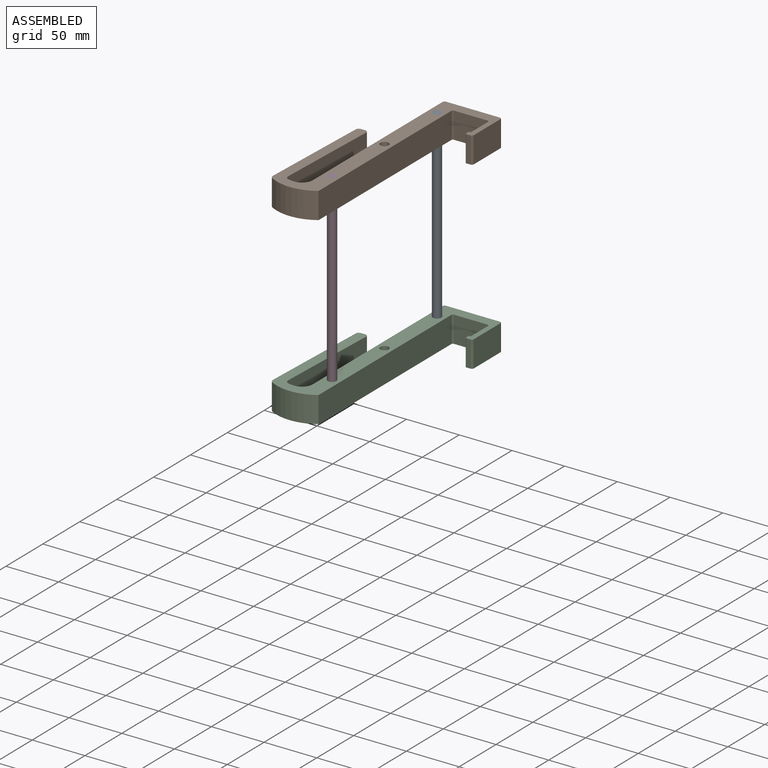
[diagram: assembled view]
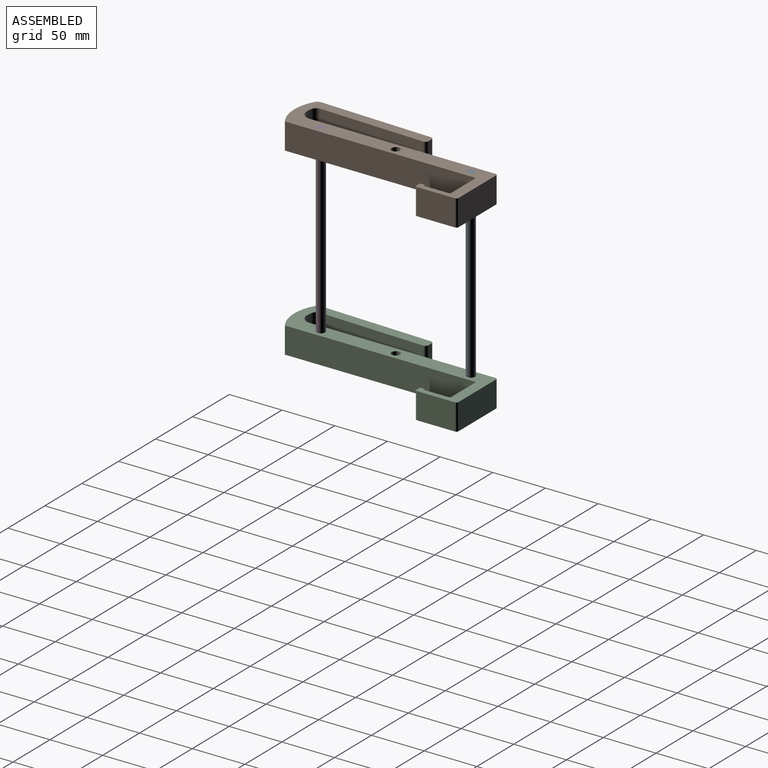
[diagram: assembled view, second angle]
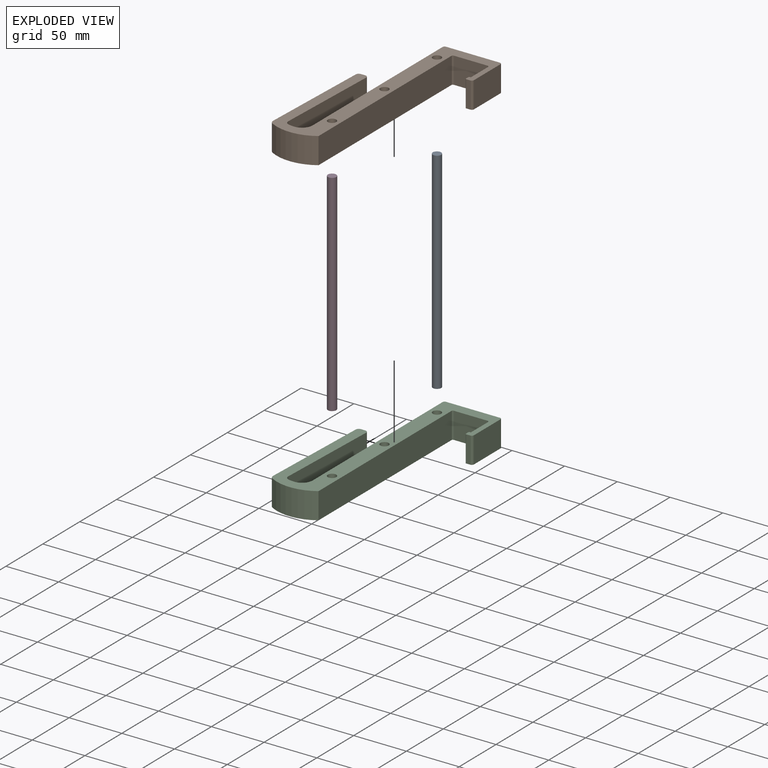
[diagram: exploded view]
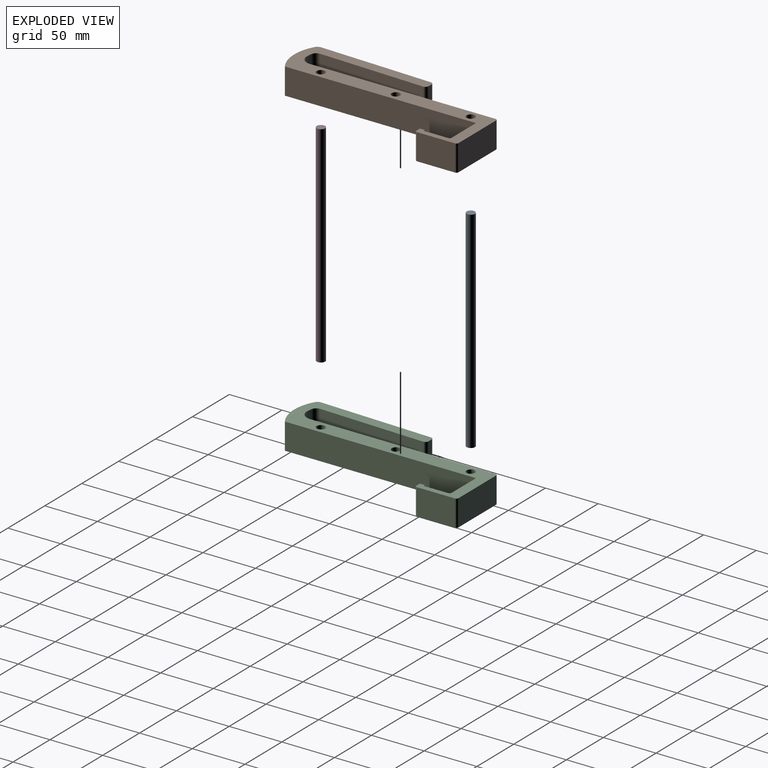
[diagram: exploded view, second angle]
ASSEMBLY  parts=4 mates=3
PART A: 3 faces, bbox 8x8x200 mm
  f0: cylinder r=4mm len=200mm, axis (0,0,-1), area 5026.5mm2, adj f1,f2
  f1: plane 8x8mm, normal (0,0,1), area 50.3mm2, adj f0
  f2: plane 8x8mm, normal (0,0,-1), area 50.3mm2, adj f0
PART B: 31 faces, bbox 85.1x198.2x25 mm
  f0: cylinder r=2mm len=25mm, axis (0,0,-1), area 78.5mm2, adj f1,f24,f25,f26
  f1: plane 25x23mm, normal (-1,0,0), area 575mm2, adj f0,f2,f25,f26
  f2: plane 25x0.84mm, normal (0,1,0), area 21.1mm2, adj f1,f3,f25,f26
  f3: cylinder r=1mm len=25mm, axis (0,0,-1), area 39.3mm2, adj f2,f4,f25,f26
  f4: plane 25x3mm, normal (-1,0,0), area 75mm2, adj f3,f5,f25,f26
  f5: cylinder r=1mm len=25mm, axis (0,0,-1), area 39.3mm2, adj f4,f6,f25,f26
  f6: plane 25x3.84mm, normal (0,-1,0), area 96.1mm2, adj f5,f25,f26,f27
  f7: plane 36x25mm, normal (1,0,0), area 900mm2, adj f25,f26,f27,f28
  f8: plane 51x25mm, normal (0,1,0), area 1275mm2, adj f25,f26,f28,f29
  f9: plane 175.99x25mm, normal (-1,0,0), area 4399.8mm2, adj f10,f25,f26,f29
  f10: cylinder r=10mm len=25mm, axis (0,0,-1), area 392.7mm2, adj f9,f11,f25,f26
  f11: cylinder r=28.74mm len=25mm, axis (0,0,-1), area 148.4mm2, adj f10,f12,f25,f26
  f12: cylinder r=5mm len=25mm, axis (0,0,-1), area 174.9mm2, adj f11,f13,f25,f26
  f13: plane 100.13x25mm, normal (1,-0.03,0), area 2504.8mm2, adj f12,f14,f25,f26
  f14: cylinder r=3mm len=25mm, axis (0,0,-1), area 120.4mm2, adj f13,f15,f25,f26
  f15: plane 25x4mm, normal (0,1,0), area 99.9mm2, adj f14,f16,f25,f26
  f16: cylinder r=3mm len=25mm, axis (0,0,-1), area 115.2mm2, adj f15,f17,f25,f26
  f17: plane 106.52x25mm, normal (-1,0.03,0), area 2664.7mm2, adj f16,f25,f26,f30
  f18: cylinder r=40.95mm len=42.52mm, axis (0,0,-1), area 1118.5mm2, adj f19,f25,f26,f30
  f19: plane 180.68x25mm, normal (1,0,0), area 4517.1mm2, adj f18,f20,f25,f26
  f20: cylinder r=2mm len=25mm, axis (0,0,-1), area 44.2mm2, adj f19,f24,f25,f26
  f21: cylinder r=4mm len=25mm, axis (0,0,-1), area 628.3mm2, adj f25,f26
  f22: cylinder r=4mm len=25mm, axis (0,0,-1), area 628.3mm2, adj f25,f26
  f23: cylinder r=4mm len=25mm, axis (0,0,-1), area 628.3mm2, adj f25,f26
  f24: plane 31.45x25mm, normal (0,-1,0), area 786.4mm2, adj f0,f20,f25,f26
  f25: plane 198.21x85.08mm, normal (0,0,1), area 4703.7mm2, adj f0,f1,f2,f3,f4,f5,f6,f7
  f26: plane 198.21x85.08mm, normal (0,0,-1), area 4703.7mm2, adj f0,f1,f2,f3,f4,f5,f6,f7
  f27: cylinder r=2mm len=25mm, axis (0,0,1), area 78.5mm2, adj f6,f7,f25,f26
  f28: cylinder r=2mm len=25mm, axis (0,0,-1), area 78.5mm2, adj f7,f8,f25,f26
  f29: cylinder r=2mm len=25mm, axis (0,0,1), area 78.5mm2, adj f8,f9,f25,f26
  f30: cylinder r=5mm len=25mm, axis (0,0,-1), area 137.2mm2, adj f17,f18,f25,f26
PART C: same geometry as B
PART D: same geometry as A
PLACE A t=(162.57,-11.05,-9.18)mm
PLACE B t=(106.04,10.08,165.82)mm
PLACE C t=(106.04,10.08,-9.18)mm fixed
PLACE D t=(162.57,-153.25,-9.18)mm
MATE fastened B.f23 <-> A.f0  axis (0,0,1) through (104.7,27.57,190.82)mm
MATE fastened A.f0 <-> C.f23  axis (0,0,-1) through (104.7,27.57,-9.18)mm
MATE fastened D.f0 <-> C.f21  axis (0,0,-1) through (104.7,-114.63,-9.18)mm
